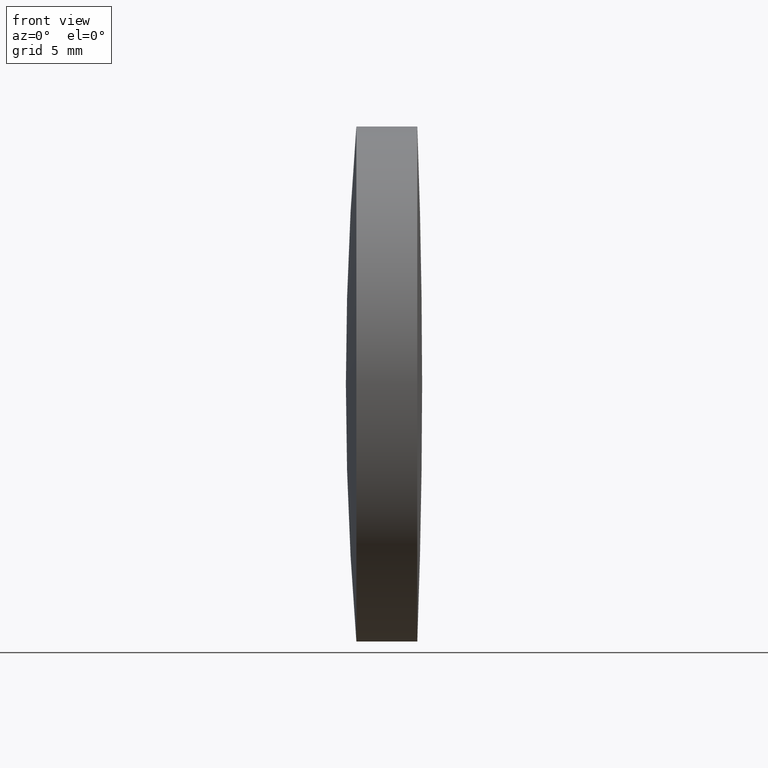
[diagram: clean part render]
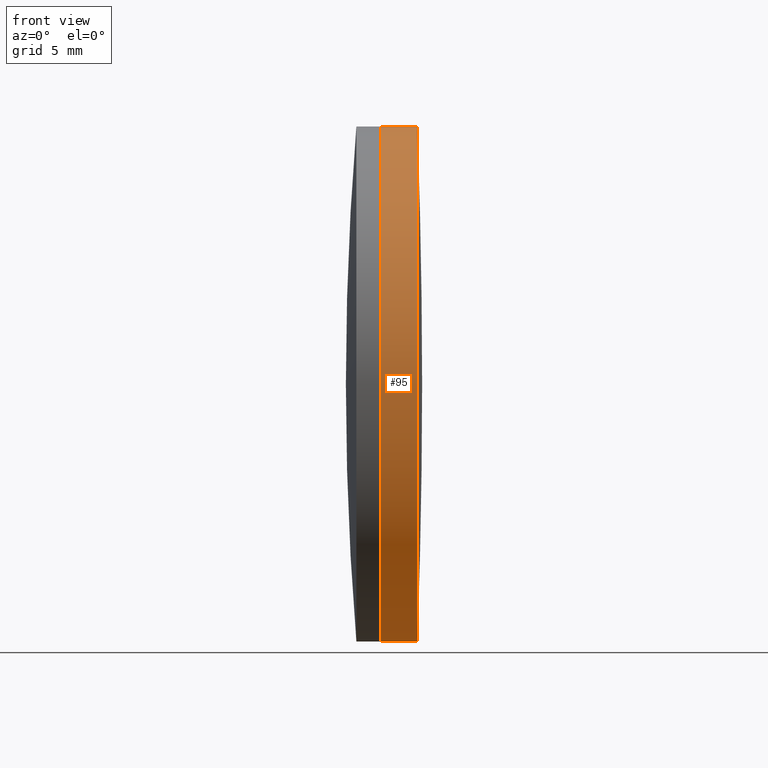
[diagram: same view with one face highlighted and labeled with its STEP entity id]
A machine part, front view. The second image highlights one B-rep face of the part: STEP entity #95.
In plain terms, the highlighted cylindrical surface (partial cylindrical patch) has radius 20 mm, axis along (-1, -0, -0).
Its self-contained STEP definition (entity closure, byte-faithful):
#3 = AXIS2_PLACEMENT_3D ( 'NONE', #262, #344, #190 ) ;
#5 = ORIENTED_EDGE ( 'NONE', *, *, #15, .F. ) ;
#11 = LINE ( 'NONE', #111, #152 ) ;
#15 = EDGE_CURVE ( 'NONE', #69, #247, #191, .T. ) ;
#19 = CARTESIAN_POINT ( 'NONE',  ( -0.5519199926577972300, 0.0000000000000000000, 0.0000000000000000000 ) ) ;
#32 = EDGE_CURVE ( 'NONE', #336, #216, #43, .T. ) ;
#38 = DIRECTION ( 'NONE',  ( -1.000000000000000000, -0.0000000000000000000, -0.0000000000000000000 ) ) ;
#43 = CIRCLE ( 'NONE', #3, 19.99999999999996100 ) ;
#44 = DIRECTION ( 'NONE',  ( -1.000000000000000000, -0.0000000000000000000, -0.0000000000000000000 ) ) ;
#49 = DIRECTION ( 'NONE',  ( -1.000000000000000000, -0.0000000000000000000, -0.0000000000000000000 ) ) ;
#59 = CARTESIAN_POINT ( 'NONE',  ( 315.2376920384078900, 0.0000000000000000000, 19.99999999999996100 ) ) ;
#64 = ORIENTED_EDGE ( 'NONE', *, *, #32, .T. ) ;
#69 = VERTEX_POINT ( 'NONE', #83 ) ;
#70 = VECTOR ( 'NONE', #38, 1000.000000000000000 ) ;
#82 = ORIENTED_EDGE ( 'NONE', *, *, #125, .F. ) ;
#83 = CARTESIAN_POINT ( 'NONE',  ( 312.3747908760627800, 2.449293598294676900E-015, -19.99999999999989700 ) ) ;
#92 = LINE ( 'NONE', #279, #70 ) ;
#93 = CARTESIAN_POINT ( 'NONE',  ( 312.3747908760627800, 0.0000000000000000000, 19.99999999999976200 ) ) ;
#95 = ADVANCED_FACE ( 'NONE', ( #319 ), #227, .T. ) ;
#111 = CARTESIAN_POINT ( 'NONE',  ( -0.5519199926577972300, 0.0000000000000000000, 19.99999999999992900 ) ) ;
#125 = EDGE_CURVE ( 'NONE', #336, #69, #92, .T. ) ;
#152 = VECTOR ( 'NONE', #345, 1000.000000000000000 ) ;
#163 = CARTESIAN_POINT ( 'NONE',  ( 312.3747908760627800, 0.0000000000000000000, 0.0000000000000000000 ) ) ;
#190 = DIRECTION ( 'NONE',  ( 0.0000000000000000000, 0.0000000000000000000, 1.000000000000000000 ) ) ;
#191 = CIRCLE ( 'NONE', #298, 19.99999999999989300 ) ;
#201 = EDGE_LOOP ( 'NONE', ( #82, #64, #281, #5 ) ) ;
#210 = DIRECTION ( 'NONE',  ( 0.0000000000000000000, 0.0000000000000000000, 1.000000000000000000 ) ) ;
#216 = VERTEX_POINT ( 'NONE', #59 ) ;
#223 = CARTESIAN_POINT ( 'NONE',  ( 315.2376920384078900, 2.449293598294701800E-015, -19.99999999999996100 ) ) ;
#227 = CYLINDRICAL_SURFACE ( 'NONE', #246, 19.99999999999992900 ) ;
#242 = DIRECTION ( 'NONE',  ( 0.0000000000000000000, 0.0000000000000000000, 1.000000000000000000 ) ) ;
#246 = AXIS2_PLACEMENT_3D ( 'NONE', #19, #49, #242 ) ;
#247 = VERTEX_POINT ( 'NONE', #93 ) ;
#262 = CARTESIAN_POINT ( 'NONE',  ( 315.2376920384078900, 0.0000000000000000000, 0.0000000000000000000 ) ) ;
#279 = CARTESIAN_POINT ( 'NONE',  ( -0.5519199926577972300, 2.449293598294697400E-015, -19.99999999999992900 ) ) ;
#281 = ORIENTED_EDGE ( 'NONE', *, *, #331, .T. ) ;
#298 = AXIS2_PLACEMENT_3D ( 'NONE', #163, #44, #210 ) ;
#319 = FACE_OUTER_BOUND ( 'NONE', #201, .T. ) ;
#331 = EDGE_CURVE ( 'NONE', #216, #247, #11, .T. ) ;
#336 = VERTEX_POINT ( 'NONE', #223 ) ;
#344 = DIRECTION ( 'NONE',  ( -1.000000000000000000, -0.0000000000000000000, -0.0000000000000000000 ) ) ;
#345 = DIRECTION ( 'NONE',  ( -1.000000000000000000, -0.0000000000000000000, -0.0000000000000000000 ) ) ;